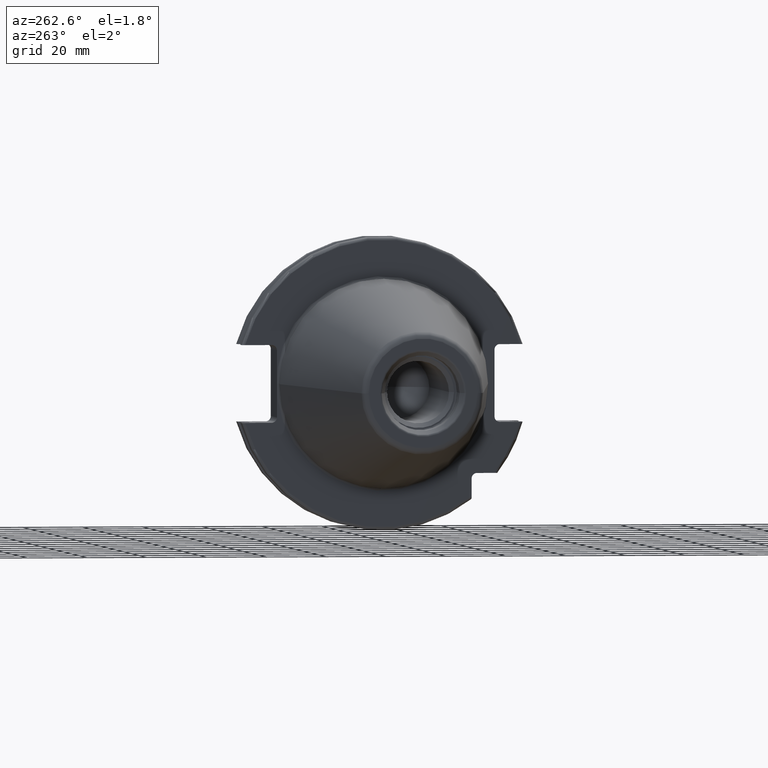
[diagram: clean part render]
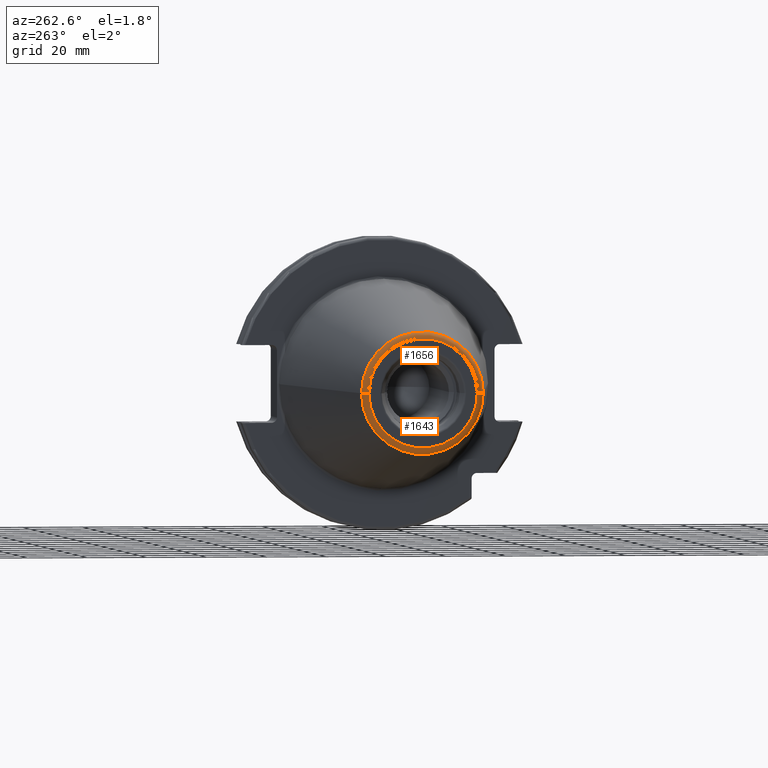
[diagram: same view with one multi-face feature highlighted, each face labeled with its STEP entity id]
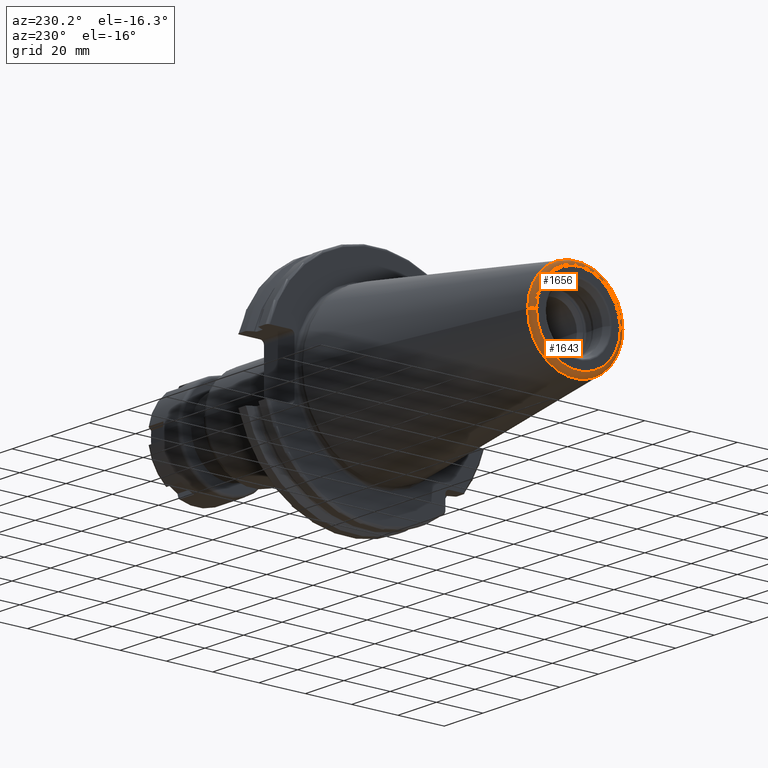
[diagram: same view with one multi-face feature highlighted, each face labeled with its STEP entity id]
A machine part, auxiliary view. The highlighted faces form ONE feature: a constant-radius fillet chain: 2 tangent blend faces with common blend radius 2.25 mm. The faces share edges in the B-rep.
A second angle (auxiliary view) of the same feature is appended — it is thin or edge-on in the first view.
Their STEP definitions:
[1] entity #1643 (Torus):
#2=CARTESIAN_POINT('',(-1.016E2,0.E0,0.E0));
#3=DIRECTION('',(-1.E0,0.E0,0.E0));
#4=DIRECTION('',(0.E0,1.E0,0.E0));
#5=AXIS2_PLACEMENT_3D('',#2,#3,#4);
#22=CARTESIAN_POINT('',(-9.935E1,1.816144700117E1,0.E0));
#23=DIRECTION('',(0.E0,0.E0,1.E0));
#24=DIRECTION('',(-1.443186691705E-1,9.895312636440E-1,0.E0));
#25=AXIS2_PLACEMENT_3D('',#22,#23,#24);
#27=CARTESIAN_POINT('',(-9.935E1,-1.816144700117E1,0.E0));
#28=DIRECTION('',(0.E0,0.E0,-1.E0));
#29=DIRECTION('',(-1.443186691705E-1,-9.895312636440E-1,0.E0));
#30=AXIS2_PLACEMENT_3D('',#27,#28,#29);
#32=CARTESIAN_POINT('',(-9.967471700563E1,0.E0,0.E0));
#33=DIRECTION('',(-1.E0,0.E0,0.E0));
#34=DIRECTION('',(0.E0,1.E0,0.E0));
#35=AXIS2_PLACEMENT_3D('',#32,#33,#34);
#1336=CARTESIAN_POINT('',(-9.967471700563E1,2.038789234437E1,0.E0));
#1337=CARTESIAN_POINT('',(-1.016E2,1.816144700117E1,0.E0));
#1338=VERTEX_POINT('',#1336);
#1339=VERTEX_POINT('',#1337);
#1340=CARTESIAN_POINT('',(-9.967471700563E1,-2.038789234437E1,0.E0));
#1341=CARTESIAN_POINT('',(-1.016E2,-1.816144700117E1,0.E0));
#1342=VERTEX_POINT('',#1340);
#1343=VERTEX_POINT('',#1341);
#1629=CARTESIAN_POINT('',(-9.935E1,0.E0,0.E0));
#1630=DIRECTION('',(1.E0,0.E0,0.E0));
#1631=DIRECTION('',(0.E0,-1.E0,0.E0));
#1632=AXIS2_PLACEMENT_3D('',#1629,#1630,#1631);
#1633=TOROIDAL_SURFACE('',#1632,1.816144700117E1,2.25E0);
#1635=ORIENTED_EDGE('',*,*,#1634,.T.);
#1636=ORIENTED_EDGE('',*,*,#1616,.T.);
#1638=ORIENTED_EDGE('',*,*,#1637,.F.);
#1640=ORIENTED_EDGE('',*,*,#1639,.F.);
#1641=EDGE_LOOP('',(#1635,#1636,#1638,#1640));
#1642=FACE_OUTER_BOUND('',#1641,.F.);
#1643=ADVANCED_FACE('',(#1642),#1633,.T.);
#6=CIRCLE('',#5,1.816144700117E1);
#26=CIRCLE('',#25,2.25E0);
#31=CIRCLE('',#30,2.25E0);
#36=CIRCLE('',#35,2.038789234437E1);
#1616=EDGE_CURVE('',#1339,#1343,#6,.T.);
#1634=EDGE_CURVE('',#1338,#1339,#26,.T.);
#1637=EDGE_CURVE('',#1342,#1343,#31,.T.);
#1639=EDGE_CURVE('',#1338,#1342,#36,.T.);
[2] entity #1656 (Torus):
#7=CARTESIAN_POINT('',(-1.016E2,0.E0,0.E0));
#8=DIRECTION('',(1.E0,0.E0,0.E0));
#9=DIRECTION('',(0.E0,1.E0,0.E0));
#10=AXIS2_PLACEMENT_3D('',#7,#8,#9);
#22=CARTESIAN_POINT('',(-9.935E1,1.816144700117E1,0.E0));
#23=DIRECTION('',(0.E0,0.E0,1.E0));
#24=DIRECTION('',(-1.443186691705E-1,9.895312636440E-1,0.E0));
#25=AXIS2_PLACEMENT_3D('',#22,#23,#24);
#27=CARTESIAN_POINT('',(-9.935E1,-1.816144700117E1,0.E0));
#28=DIRECTION('',(0.E0,0.E0,-1.E0));
#29=DIRECTION('',(-1.443186691705E-1,-9.895312636440E-1,0.E0));
#30=AXIS2_PLACEMENT_3D('',#27,#28,#29);
#37=CARTESIAN_POINT('',(-9.967471700563E1,0.E0,0.E0));
#38=DIRECTION('',(1.E0,0.E0,0.E0));
#39=DIRECTION('',(0.E0,1.E0,0.E0));
#40=AXIS2_PLACEMENT_3D('',#37,#38,#39);
#1336=CARTESIAN_POINT('',(-9.967471700563E1,2.038789234437E1,0.E0));
#1337=CARTESIAN_POINT('',(-1.016E2,1.816144700117E1,0.E0));
#1338=VERTEX_POINT('',#1336);
#1339=VERTEX_POINT('',#1337);
#1340=CARTESIAN_POINT('',(-9.967471700563E1,-2.038789234437E1,0.E0));
#1341=CARTESIAN_POINT('',(-1.016E2,-1.816144700117E1,0.E0));
#1342=VERTEX_POINT('',#1340);
#1343=VERTEX_POINT('',#1341);
#1644=CARTESIAN_POINT('',(-9.935E1,0.E0,0.E0));
#1645=DIRECTION('',(1.E0,0.E0,0.E0));
#1646=DIRECTION('',(0.E0,-1.E0,0.E0));
#1647=AXIS2_PLACEMENT_3D('',#1644,#1645,#1646);
#1648=TOROIDAL_SURFACE('',#1647,1.816144700117E1,2.25E0);
#1649=ORIENTED_EDGE('',*,*,#1634,.F.);
#1651=ORIENTED_EDGE('',*,*,#1650,.T.);
#1652=ORIENTED_EDGE('',*,*,#1637,.T.);
#1653=ORIENTED_EDGE('',*,*,#1618,.F.);
#1654=EDGE_LOOP('',(#1649,#1651,#1652,#1653));
#1655=FACE_OUTER_BOUND('',#1654,.F.);
#1656=ADVANCED_FACE('',(#1655),#1648,.T.);
#11=CIRCLE('',#10,1.816144700117E1);
#26=CIRCLE('',#25,2.25E0);
#31=CIRCLE('',#30,2.25E0);
#41=CIRCLE('',#40,2.038789234437E1);
#1618=EDGE_CURVE('',#1339,#1343,#11,.T.);
#1634=EDGE_CURVE('',#1338,#1339,#26,.T.);
#1637=EDGE_CURVE('',#1342,#1343,#31,.T.);
#1650=EDGE_CURVE('',#1338,#1342,#41,.T.);